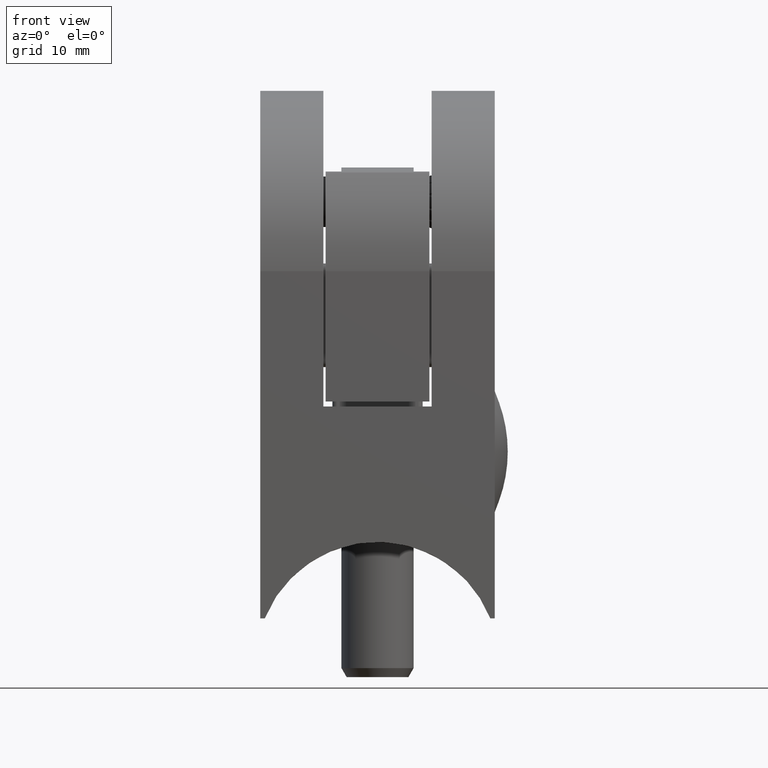
[diagram: clean part render]
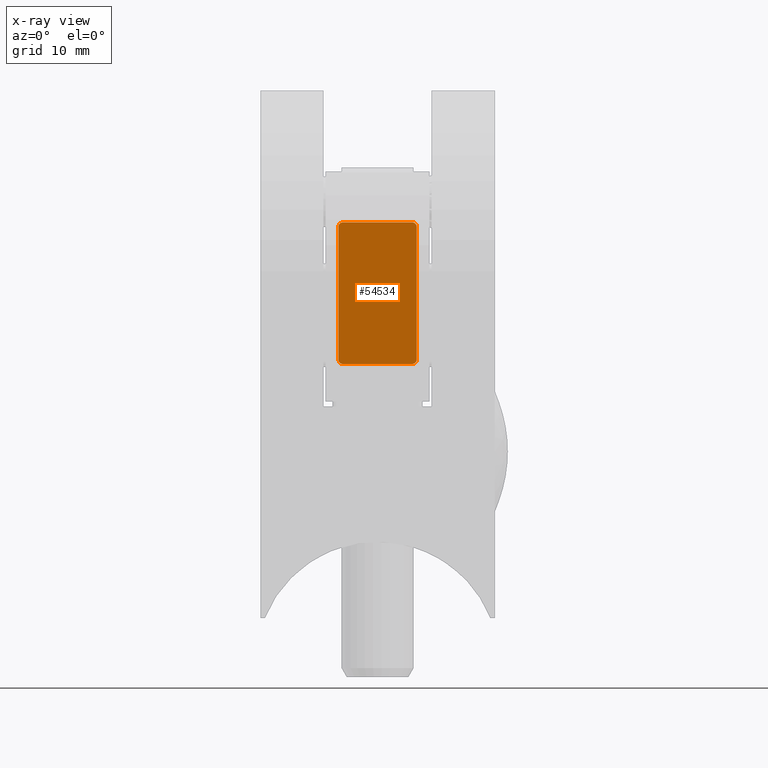
[diagram: x-ray — body ghosted, one internal face saturated and labeled with its STEP entity id]
A machine part, front view, then the same camera in x-ray: the body is ghosted and one INTERNAL B-rep face — a face not visible from any outside direction — is saturated and labeled: STEP entity #54534.
In plain terms, the highlighted planar face has unit normal (0, 1, 0).
Its self-contained STEP definition (entity closure, byte-faithful):
#1445 = EDGE_CURVE ( 'NONE', #60354, #40903, #27291, .T. ) ;
#2501 = CARTESIAN_POINT ( 'NONE',  ( 4.350000000000000533, -1.000000000000000000, 7.349999999999996980 ) ) ;
#3591 = ORIENTED_EDGE ( 'NONE', *, *, #67101, .F. ) ;
#3633 = ORIENTED_EDGE ( 'NONE', *, *, #69992, .F. ) ;
#4004 = EDGE_CURVE ( 'NONE', #4693, #66028, #42703, .T. ) ;
#4027 = AXIS2_PLACEMENT_3D ( 'NONE', #33675, #22348, #61740 ) ;
#4051 = EDGE_LOOP ( 'NONE', ( #28930, #25662, #3633, #69513, #3591, #55208, #40325, #62165 ) ) ;
#4693 = VERTEX_POINT ( 'NONE', #5097 ) ;
#4760 = LINE ( 'NONE', #67508, #50677 ) ;
#5097 = CARTESIAN_POINT ( 'NONE',  ( -4.350000000000000533, -1.000000000000000000, -7.349999999999993427 ) ) ;
#8643 = AXIS2_PLACEMENT_3D ( 'NONE', #9614, #70816, #37476 ) ;
#9271 = DIRECTION ( 'NONE',  ( 1.000000000000000000, 0.000000000000000000, 0.000000000000000000 ) ) ;
#9614 = CARTESIAN_POINT ( 'NONE',  ( 3.849999999999998757, -1.000000000000000000, -7.349999999999996980 ) ) ;
#11015 = VERTEX_POINT ( 'NONE', #23875 ) ;
#11016 = CIRCLE ( 'NONE', #4027, 0.5000000000000004441 ) ;
#12308 = DIRECTION ( 'NONE',  ( 0.000000000000000000, 0.000000000000000000, 1.000000000000000000 ) ) ;
#12423 = CARTESIAN_POINT ( 'NONE',  ( 4.349999999999998757, -1.000000000000000000, -7.349999999999993427 ) ) ;
#15280 = CARTESIAN_POINT ( 'NONE',  ( -3.849999999999995204, -1.000000000000000000, 7.850000000000001421 ) ) ;
#16921 = LINE ( 'NONE', #65414, #30767 ) ;
#17847 = CARTESIAN_POINT ( 'NONE',  ( -4.350000000000000533, -1.000000000000000000, -7.349999999999993427 ) ) ;
#18166 = DIRECTION ( 'NONE',  ( -1.000000000000000000, -0.000000000000000000, -0.000000000000000000 ) ) ;
#18320 = DIRECTION ( 'NONE',  ( 1.180083997263134957E-16, 0.000000000000000000, 1.000000000000000000 ) ) ;
#18887 = DIRECTION ( 'NONE',  ( 0.000000000000000000, 1.000000000000000000, 0.000000000000000000 ) ) ;
#22348 = DIRECTION ( 'NONE',  ( 0.000000000000000000, 1.000000000000000000, 0.000000000000000000 ) ) ;
#23875 = CARTESIAN_POINT ( 'NONE',  ( 3.849999999999995204, -1.000000000000000000, -7.849999999999997868 ) ) ;
#25662 = ORIENTED_EDGE ( 'NONE', *, *, #4004, .F. ) ;
#26184 = EDGE_CURVE ( 'NONE', #66028, #54860, #11016, .T. ) ;
#27291 = LINE ( 'NONE', #64056, #65408 ) ;
#28084 = CARTESIAN_POINT ( 'NONE',  ( -3.850000000000000533, -1.000000000000000000, -7.349999999999997868 ) ) ;
#28930 = ORIENTED_EDGE ( 'NONE', *, *, #26184, .F. ) ;
#29865 = VERTEX_POINT ( 'NONE', #37203 ) ;
#30767 = VECTOR ( 'NONE', #9271, 1000.000000000000000 ) ;
#33675 = CARTESIAN_POINT ( 'NONE',  ( -3.849999999999998757, -1.000000000000000000, 7.350000000000000533 ) ) ;
#34591 = DIRECTION ( 'NONE',  ( 0.000000000000000000, 1.000000000000000000, 0.000000000000000000 ) ) ;
#35994 = DIRECTION ( 'NONE',  ( -1.180083997263134957E-16, -0.000000000000000000, -1.000000000000000000 ) ) ;
#37203 = CARTESIAN_POINT ( 'NONE',  ( 3.849999999999996980, -1.000000000000000000, 7.850000000000001421 ) ) ;
#37476 = DIRECTION ( 'NONE',  ( 0.000000000000000000, 0.000000000000000000, -1.000000000000000000 ) ) ;
#40325 = ORIENTED_EDGE ( 'NONE', *, *, #66538, .F. ) ;
#40425 = PLANE ( 'NONE',  #71114 ) ;
#40903 = VERTEX_POINT ( 'NONE', #12423 ) ;
#41665 = CARTESIAN_POINT ( 'NONE',  ( -3.849999999999996980, -1.000000000000000000, -7.849999999999997868 ) ) ;
#42281 = CARTESIAN_POINT ( 'NONE',  ( -4.349999999999998757, -1.000000000000000000, 7.349999999999996980 ) ) ;
#42703 = LINE ( 'NONE', #17847, #62624 ) ;
#45885 = EDGE_CURVE ( 'NONE', #11015, #52316, #4760, .T. ) ;
#50677 = VECTOR ( 'NONE', #18166, 1000.000000000000000 ) ;
#50797 = CIRCLE ( 'NONE', #52323, 0.4999999999999995559 ) ;
#51069 = DIRECTION ( 'NONE',  ( 0.000000000000000000, -0.000000000000000000, 1.000000000000000000 ) ) ;
#51900 = CIRCLE ( 'NONE', #8643, 0.5000000000000004441 ) ;
#52010 = CARTESIAN_POINT ( 'NONE',  ( -3.849999999999998757, -1.000000000000000000, 7.350000000000000533 ) ) ;
#52316 = VERTEX_POINT ( 'NONE', #41665 ) ;
#52323 = AXIS2_PLACEMENT_3D ( 'NONE', #28084, #34591, #12308 ) ;
#54534 = ADVANCED_FACE ( 'NONE', ( #68865 ), #40425, .F. ) ;
#54860 = VERTEX_POINT ( 'NONE', #15280 ) ;
#55207 = EDGE_CURVE ( 'NONE', #54860, #29865, #16921, .T. ) ;
#55208 = ORIENTED_EDGE ( 'NONE', *, *, #1445, .F. ) ;
#59104 = DIRECTION ( 'NONE',  ( 0.000000000000000000, 0.000000000000000000, 1.000000000000000000 ) ) ;
#60354 = VERTEX_POINT ( 'NONE', #2501 ) ;
#60607 = AXIS2_PLACEMENT_3D ( 'NONE', #65142, #70902, #59104 ) ;
#61488 = CIRCLE ( 'NONE', #60607, 0.4999999999999995559 ) ;
#61740 = DIRECTION ( 'NONE',  ( 0.000000000000000000, 0.000000000000000000, 1.000000000000000000 ) ) ;
#62165 = ORIENTED_EDGE ( 'NONE', *, *, #55207, .F. ) ;
#62624 = VECTOR ( 'NONE', #18320, 1000.000000000000000 ) ;
#64056 = CARTESIAN_POINT ( 'NONE',  ( 4.349999999999998757, -1.000000000000000000, -7.349999999999993427 ) ) ;
#65142 = CARTESIAN_POINT ( 'NONE',  ( 3.850000000000000533, -1.000000000000000000, 7.350000000000001421 ) ) ;
#65408 = VECTOR ( 'NONE', #35994, 1000.000000000000000 ) ;
#65414 = CARTESIAN_POINT ( 'NONE',  ( -3.849999999999995204, -1.000000000000000000, 7.850000000000001421 ) ) ;
#66028 = VERTEX_POINT ( 'NONE', #42281 ) ;
#66538 = EDGE_CURVE ( 'NONE', #29865, #60354, #61488, .T. ) ;
#67101 = EDGE_CURVE ( 'NONE', #40903, #11015, #51900, .T. ) ;
#67508 = CARTESIAN_POINT ( 'NONE',  ( -3.849999999999996980, -1.000000000000000000, -7.849999999999997868 ) ) ;
#68865 = FACE_OUTER_BOUND ( 'NONE', #4051, .T. ) ;
#69513 = ORIENTED_EDGE ( 'NONE', *, *, #45885, .F. ) ;
#69992 = EDGE_CURVE ( 'NONE', #52316, #4693, #50797, .T. ) ;
#70816 = DIRECTION ( 'NONE',  ( 0.000000000000000000, 1.000000000000000000, -0.000000000000000000 ) ) ;
#70902 = DIRECTION ( 'NONE',  ( 0.000000000000000000, 1.000000000000000000, 0.000000000000000000 ) ) ;
#71114 = AXIS2_PLACEMENT_3D ( 'NONE', #52010, #18887, #51069 ) ;